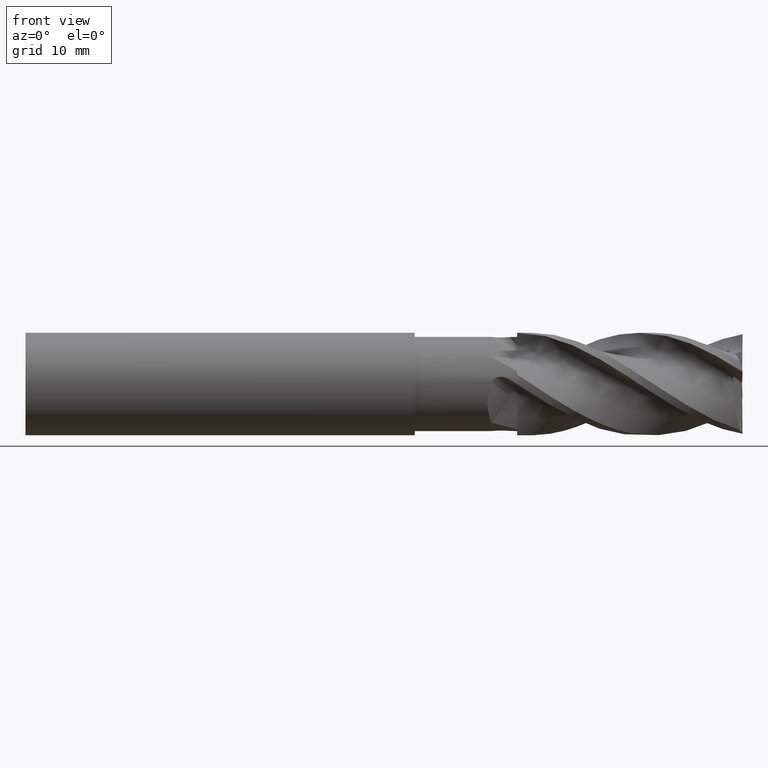
[diagram: clean part render]
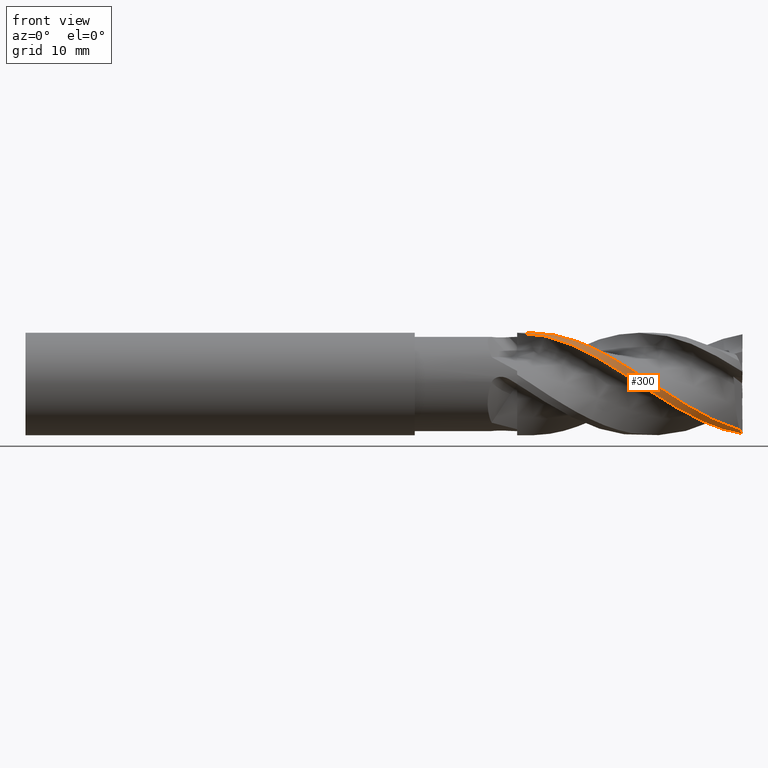
[diagram: same view with one face highlighted and labeled with its STEP entity id]
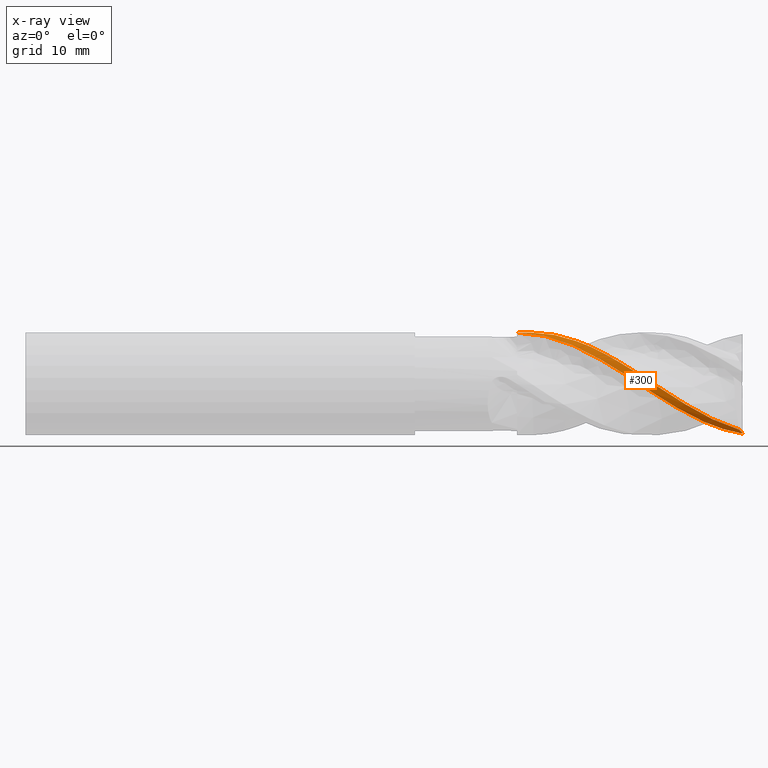
[diagram: x-ray of the same camera — body ghosted, the highlighted face saturated]
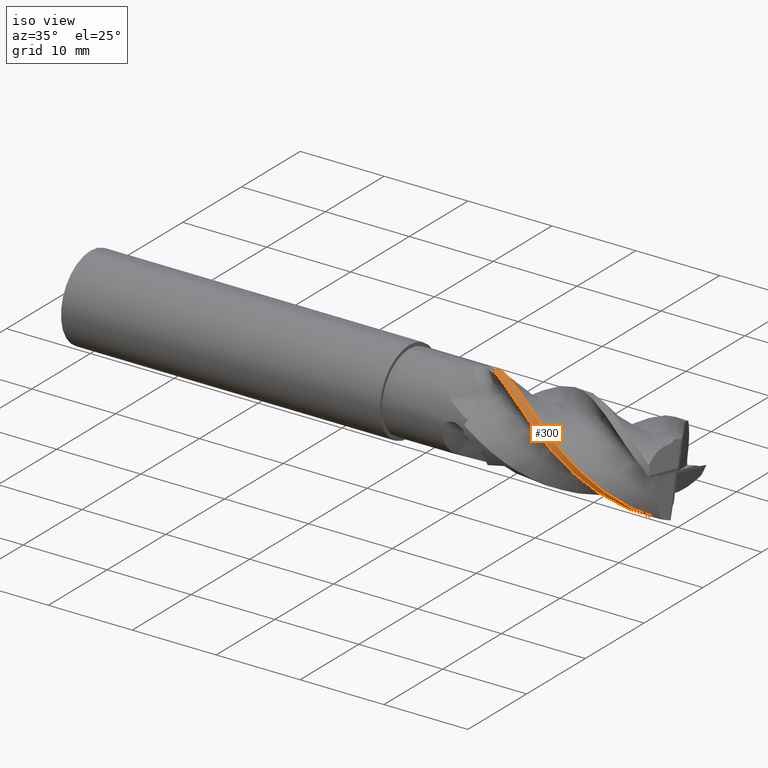
[diagram: same view with one face highlighted and labeled with its STEP entity id]
A machine part, front view. The second image highlights one B-rep face of the part: STEP entity #300.
The next image is the same camera in x-ray: the body ghosted, the highlighted face saturated — about 0% of this face is hidden behind the body in this view.
A second angle (iso view) of the same face is appended — the face is thin or edge-on in the first view.
In plain terms, the highlighted cylindrical surface (partial cylindrical patch) has radius 5 mm, axis along (-1, -0, -0).
Its self-contained STEP definition (entity closure, byte-faithful):
#24 = ORIENTED_EDGE ( 'NONE', *, *, #201, .T. ) ;
#29 = FACE_OUTER_BOUND ( 'NONE', #6303, .T. ) ;
#39 = ORIENTED_EDGE ( 'NONE', *, *, #163, .T. ) ;
#91 = ORIENTED_EDGE ( 'NONE', *, *, #169, .T. ) ;
#102 = CIRCLE ( 'NONE', #178, 5.000000000000016900 ) ;
#115 = CYLINDRICAL_SURFACE ( 'NONE', #141, 5.000000000000015100 ) ;
#122 = ORIENTED_EDGE ( 'NONE', *, *, #462, .T. ) ;
#141 = AXIS2_PLACEMENT_3D ( 'NONE', #1196, #1188, #1191 ) ;
#155 = EDGE_CURVE ( 'NONE', #3981, #3852, #4374, .T. ) ;
#163 = EDGE_CURVE ( 'NONE', #3817, #3836, #2107, .T. ) ;
#169 = EDGE_CURVE ( 'NONE', #3836, #3852, #102, .T. ) ;
#178 = AXIS2_PLACEMENT_3D ( 'NONE', #865, #899, #900 ) ;
#201 = EDGE_CURVE ( 'NONE', #3981, #3986, #292, .T. ) ;
#292 = B_SPLINE_CURVE_WITH_KNOTS ( 'NONE', 3,
 ( #996, #1022, #1023, #1024, #1025, #1026, #1027, #1028, #1029, #1030, #1031, #1032, #1033, #1034, #1035, #1036, #1037, #1038, #1039, #1040, #1041, #1042, #1043, #1044, #1045, #1046, #1047, #1048, #1049, #1050, #1051, #1052, #1053, #1054, #1055, #1056, #1057, #1058 ),
 .UNSPECIFIED., .F., .F.,
 ( 4, 2, 2, 2, 2, 2, 2, 2, 2, 2, 2, 2, 2, 2, 2, 2, 2, 2, 4 ),
 ( 0.0003517343773379502500, 0.001866472290228603600, 0.003381210203119257000, 0.004895948116009909800, 0.006410686028900563900, 0.007925423941791217100, 0.009440161854681869400, 0.01019753081112719600, 0.01095489976757252300, 0.01246963768046317800, 0.01398437559335383000, 0.01549911350624448400, 0.01701385141913514000, 0.01777122037558046300, 0.01852858933202579000, 0.02155806515780709500, 0.02231543411425241900, 0.02307280307069774600, 0.02458754098358838900 ),
 .UNSPECIFIED. ) ;
#300 = ADVANCED_FACE ( 'NONE', ( #29 ), #115, .T. ) ;
#462 = EDGE_CURVE ( 'NONE', #3986, #3817, #1888, .T. ) ;
#495 = ORIENTED_EDGE ( 'NONE', *, *, #155, .F. ) ;
#834 = CARTESIAN_POINT ( 'NONE',  ( 29.70262055360116400, -2.240231160002943900, -4.470051940386384500 ) ) ;
#846 = CARTESIAN_POINT ( 'NONE',  ( 30.00000000000000000, -1.351327160442547200, -4.813929258459293900 ) ) ;
#847 = CARTESIAN_POINT ( 'NONE',  ( 29.89981194599214500, -1.658135754012974400, -4.727804439566213500 ) ) ;
#848 = CARTESIAN_POINT ( 'NONE',  ( 29.80038370766058600, -1.955339073853833200, -4.612829728461544000 ) ) ;
#849 = CARTESIAN_POINT ( 'NONE',  ( 8.000000000000008900, -3.371984881935656000E-014, 5.000000000000012400 ) ) ;
#865 = CARTESIAN_POINT ( 'NONE',  ( 30.00000000000000000, 0.0000000000000000000, 0.0000000000000000000 ) ) ;
#866 = CARTESIAN_POINT ( 'NONE',  ( 8.461864575454862700, -0.3043825993731016900, 5.000000000000014200 ) ) ;
#867 = CARTESIAN_POINT ( 'NONE',  ( 8.922054463733291000, -0.6076564736293985600, 4.972223425805575300 ) ) ;
#868 = CARTESIAN_POINT ( 'NONE',  ( 9.843687160313590900, -1.205053677508986200, 4.862108371930381700 ) ) ;
#869 = CARTESIAN_POINT ( 'NONE',  ( 10.30608116422774000, -1.499670722333178200, 4.779373170893421700 ) ) ;
#870 = CARTESIAN_POINT ( 'NONE',  ( 11.68272013544947000, -2.347167751989157400, 4.456061520259615000 ) ) ;
#871 = CARTESIAN_POINT ( 'NONE',  ( 12.59217818241571500, -2.868169310038100500, 4.140129657312584800 ) ) ;
#872 = CARTESIAN_POINT ( 'NONE',  ( 13.97108916368798300, -3.547529685883755500, 3.536495485699726200 ) ) ;
#873 = CARTESIAN_POINT ( 'NONE',  ( 14.43386782584690300, -3.756907204011370900, 3.313115801036115500 ) ) ;
#874 = CARTESIAN_POINT ( 'NONE',  ( 15.34979826617298200, -4.128147734108597300, 2.837161316527805300 ) ) ;
#875 = CARTESIAN_POINT ( 'NONE',  ( 15.80531174916690400, -4.291270519727669700, 2.583614918138900800 ) ) ;
#876 = CARTESIAN_POINT ( 'NONE',  ( 16.71601393055794600, -4.569499520939866800, 2.051765787521561800 ) ) ;
#877 = CARTESIAN_POINT ( 'NONE',  ( 17.17121222556654200, -4.684606274118006100, 1.773479893612733400 ) ) ;
#878 = CARTESIAN_POINT ( 'NONE',  ( 18.08567430667012500, -4.863661972111706300, 1.198148195169895600 ) ) ;
#879 = CARTESIAN_POINT ( 'NONE',  ( 18.54714702253915300, -4.927761787656241000, 0.8995636430977205200 ) ) ;
#880 = CARTESIAN_POINT ( 'NONE',  ( 19.92806106089716800, -5.036684145877382300, -0.004092693510939836100 ) ) ;
#881 = CARTESIAN_POINT ( 'NONE',  ( 20.83538127513917400, -4.998837118898118000, -0.6105243224921189600 ) ) ;
#882 = CARTESIAN_POINT ( 'NONE',  ( 22.20299102311084000, -4.783573889921260800, -1.485832750369553400 ) ) ;
#883 = CARTESIAN_POINT ( 'NONE',  ( 22.65995323776136100, -4.685344727084984800, -1.771889732561642100 ) ) ;
#884 = CARTESIAN_POINT ( 'NONE',  ( 23.58073770741850700, -4.436724948236133900, -2.325407527656068000 ) ) ;
#885 = CARTESIAN_POINT ( 'NONE',  ( 24.04214820329081800, -4.286742064648464600, -2.591257220826266700 ) ) ;
#886 = CARTESIAN_POINT ( 'NONE',  ( 25.41362563098745400, -3.773490698048687500, -3.335244219691120700 ) ) ;
#887 = CARTESIAN_POINT ( 'NONE',  ( 26.31981726979738300, -3.344846162727712600, -3.765143692553069200 ) ) ;
#888 = CARTESIAN_POINT ( 'NONE',  ( 27.69375705382108800, -2.600812016685304200, -4.280987336273847500 ) ) ;
#889 = CARTESIAN_POINT ( 'NONE',  ( 28.15592773137319300, -2.334728643893836600, -4.431856551753244700 ) ) ;
#890 = CARTESIAN_POINT ( 'NONE',  ( 29.07784489066638000, -1.780926359666860300, -4.681945283467143800 ) ) ;
#891 = CARTESIAN_POINT ( 'NONE',  ( 29.53811105400377500, -1.493092354050963500, -4.781558524981798900 ) ) ;
#892 = CARTESIAN_POINT ( 'NONE',  ( 30.00000000000001400, -1.197605160818747500, -4.854455878755151100 ) ) ;
#899 = DIRECTION ( 'NONE',  ( -1.000000000000000000, -0.0000000000000000000, -0.0000000000000000000 ) ) ;
#900 = DIRECTION ( 'NONE',  ( 0.0000000000000000000, 0.0000000000000000000, 1.000000000000000000 ) ) ;
#996 = CARTESIAN_POINT ( 'NONE',  ( 29.70262055360116400, -2.240231160002943900, -4.470051940386384500 ) ) ;
#1022 = CARTESIAN_POINT ( 'NONE',  ( 29.27710499866522700, -2.490470292643570900, -4.344640980990418700 ) ) ;
#1023 = CARTESIAN_POINT ( 'NONE',  ( 28.85716542189566900, -2.732676982397978200, -4.196588484219913300 ) ) ;
#1024 = CARTESIAN_POINT ( 'NONE',  ( 28.01693400107393800, -3.185454226087317800, -3.864163527791929700 ) ) ;
#1025 = CARTESIAN_POINT ( 'NONE',  ( 27.59613676996964000, -3.395473468180205200, -3.680340718720970500 ) ) ;
#1026 = CARTESIAN_POINT ( 'NONE',  ( 26.74414358781231700, -3.775070546197242000, -3.289831340695958100 ) ) ;
#1027 = CARTESIAN_POINT ( 'NONE',  ( 26.32180253407233300, -3.954134155479192400, -3.073310247867581300 ) ) ;
#1028 = CARTESIAN_POINT ( 'NONE',  ( 25.47351538369062500, -4.276262273376192800, -2.606529065342358700 ) ) ;
#1029 = CARTESIAN_POINT ( 'NONE',  ( 25.05137583067703100, -4.417498930823640500, -2.358549859516511300 ) ) ;
#1030 = CARTESIAN_POINT ( 'NONE',  ( 24.20642154180489000, -4.651427563938063300, -1.855067616312296300 ) ) ;
#1031 = CARTESIAN_POINT ( 'NONE',  ( 23.78050833034666700, -4.744510943321716700, -1.602019932190396100 ) ) ;
#1032 = CARTESIAN_POINT ( 'NONE',  ( 22.93952629408871900, -4.892531892348201500, -1.067700162400750300 ) ) ;
#1033 = CARTESIAN_POINT ( 'NONE',  ( 22.52179893707292300, -4.945188936762086500, -0.7900326205523473500 ) ) ;
#1034 = CARTESIAN_POINT ( 'NONE',  ( 21.89069557592927100, -4.988234473174822300, -0.3705106355870986800 ) ) ;
#1035 = CARTESIAN_POINT ( 'NONE',  ( 21.67956277264720600, -4.996648573534556300, -0.2302031136325929400 ) ) ;
#1036 = CARTESIAN_POINT ( 'NONE',  ( 21.25429896107189600, -5.001708971751961400, 0.04896736491765722000 ) ) ;
#1037 = CARTESIAN_POINT ( 'NONE',  ( 21.03915757639935100, -4.998379546995464800, 0.1873200859293267000 ) ) ;
#1038 = CARTESIAN_POINT ( 'NONE',  ( 20.39614020860620200, -4.971625284593062400, 0.5987400698588062300 ) ) ;
#1039 = CARTESIAN_POINT ( 'NONE',  ( 19.97464350828714800, -4.930539587994659600, 0.8765962176350372600 ) ) ;
#1040 = CARTESIAN_POINT ( 'NONE',  ( 19.13567185828566900, -4.801595668063967500, 1.422434742961496300 ) ) ;
#1041 = CARTESIAN_POINT ( 'NONE',  ( 18.71810808822324300, -4.713741324352144900, 1.690273077350480400 ) ) ;
#1042 = CARTESIAN_POINT ( 'NONE',  ( 17.87525966147635600, -4.498738952103536800, 2.199483618885885100 ) ) ;
#1043 = CARTESIAN_POINT ( 'NONE',  ( 17.44860775560571400, -4.373573637445420400, 2.439315151062263300 ) ) ;
#1044 = CARTESIAN_POINT ( 'NONE',  ( 16.60188948167049000, -4.073869240337562500, 2.912386337866414500 ) ) ;
#1045 = CARTESIAN_POINT ( 'NONE',  ( 16.17730178406762300, -3.899783224856969700, 3.141842928949484500 ) ) ;
#1046 = CARTESIAN_POINT ( 'NONE',  ( 15.54456024933310800, -3.616348936218056800, 3.455704258075514600 ) ) ;
#1047 = CARTESIAN_POINT ( 'NONE',  ( 15.33387244894561300, -3.518093138662412600, 3.555581458679363500 ) ) ;
#1048 = CARTESIAN_POINT ( 'NONE',  ( 14.91140696525482100, -3.316104983310455400, 3.744674429275736600 ) ) ;
#1049 = CARTESIAN_POINT ( 'NONE',  ( 14.69893153265909900, -3.213226038749659200, 3.833235009121692900 ) ) ;
#1050 = CARTESIAN_POINT ( 'NONE',  ( 13.63890877263009200, -2.680175599812941300, 4.255919892836986100 ) ) ;
#1051 = CARTESIAN_POINT ( 'NONE',  ( 12.80971845232556600, -2.176953197517720500, 4.535666319834327000 ) ) ;
#1052 = CARTESIAN_POINT ( 'NONE',  ( 11.74408274448023100, -1.518504033874379600, 4.765879523857459600 ) ) ;
#1053 = CARTESIAN_POINT ( 'NONE',  ( 11.52862836692619200, -1.386635867114484700, 4.805867518395523100 ) ) ;
#1054 = CARTESIAN_POINT ( 'NONE',  ( 11.10126737686063900, -1.118895424901182700, 4.875160988159537500 ) ) ;
#1055 = CARTESIAN_POINT ( 'NONE',  ( 10.88926724196972100, -0.9821278776561699300, 4.904609489900873400 ) ) ;
#1056 = CARTESIAN_POINT ( 'NONE',  ( 10.25614379208026300, -0.5663628108954996700, 4.975772385510920200 ) ) ;
#1057 = CARTESIAN_POINT ( 'NONE',  ( 9.837925698713153400, -0.2818409951766714900, 4.999999999999118000 ) ) ;
#1058 = CARTESIAN_POINT ( 'NONE',  ( 9.417007853447970000, -1.588437497854200400E-011, 5.000000000000015100 ) ) ;
#1188 = DIRECTION ( 'NONE',  ( -1.000000000000000000, -0.0000000000000000000, -0.0000000000000000000 ) ) ;
#1191 = DIRECTION ( 'NONE',  ( 0.0000000000000000000, 0.0000000000000000000, 1.000000000000000000 ) ) ;
#1196 = CARTESIAN_POINT ( 'NONE',  ( -39.76065438357068200, 0.0000000000000000000, 0.0000000000000000000 ) ) ;
#1879 = VECTOR ( 'NONE', #4109, 1000.000000000000000 ) ;
#1888 = LINE ( 'NONE', #4108, #1879 ) ;
#2107 = B_SPLINE_CURVE_WITH_KNOTS ( 'NONE', 3,
 ( #849, #866, #867, #868, #869, #870, #871, #872, #873, #874, #875, #876, #877, #878, #879, #880, #881, #882, #883, #884, #885, #886, #887, #888, #889, #890, #891, #892 ),
 .UNSPECIFIED., .F., .F.,
 ( 4, 2, 2, 2, 2, 2, 2, 2, 2, 2, 2, 2, 2, 4 ),
 ( 0.0000000000000000000, 0.001655086336224903700, 0.003310172672449807300, 0.006620345344899612000, 0.008275431681124514200, 0.009930518017349414600, 0.01158560435357431800, 0.01324069068979922100, 0.01655086336224902500, 0.01820594969847392400, 0.01986103603469881900, 0.02317120870714860900, 0.02482629504337349400, 0.02648138137959838200 ),
 .UNSPECIFIED. ) ;
#3817 = VERTEX_POINT ( 'NONE', #4250 ) ;
#3836 = VERTEX_POINT ( 'NONE', #4253 ) ;
#3852 = VERTEX_POINT ( 'NONE', #4259 ) ;
#3981 = VERTEX_POINT ( 'NONE', #4339 ) ;
#3986 = VERTEX_POINT ( 'NONE', #4341 ) ;
#4108 = CARTESIAN_POINT ( 'NONE',  ( -39.76065438357068200, 0.0000000000000000000, 5.000000000000015100 ) ) ;
#4109 = DIRECTION ( 'NONE',  ( -1.000000000000000000, -0.0000000000000000000, -0.0000000000000000000 ) ) ;
#4250 = CARTESIAN_POINT ( 'NONE',  ( 8.000000000000008900, -3.371984881935656000E-014, 5.000000000000012400 ) ) ;
#4253 = CARTESIAN_POINT ( 'NONE',  ( 30.00000000000001400, -1.197605160818747500, -4.854455878755151100 ) ) ;
#4259 = CARTESIAN_POINT ( 'NONE',  ( 30.00000000000000000, -1.351327160442547200, -4.813929258459293900 ) ) ;
#4339 = CARTESIAN_POINT ( 'NONE',  ( 29.70262055360116400, -2.240231160002943900, -4.470051940386384500 ) ) ;
#4341 = CARTESIAN_POINT ( 'NONE',  ( 9.417007853447970000, -1.588437497854200400E-011, 5.000000000000015100 ) ) ;
#4374 =( BOUNDED_CURVE ( )  B_SPLINE_CURVE ( 3, ( #834, #848, #847, #846 ),
 .UNSPECIFIED., .F., .T. ) 
 B_SPLINE_CURVE_WITH_KNOTS ( ( 4, 4 ),
 ( 1.348090077959196200, 1.539000107229572300 ),
 .UNSPECIFIED. ) 
 CURVE ( )  GEOMETRIC_REPRESENTATION_ITEM ( )  RATIONAL_B_SPLINE_CURVE ( ( 1.000000000000000000, 0.9969650855362500700, 0.9969650855362500700, 1.000000000000000000 ) ) 
 REPRESENTATION_ITEM ( '' )  );
#6303 = EDGE_LOOP ( 'NONE', ( #24, #122, #39, #91, #495 ) ) ;